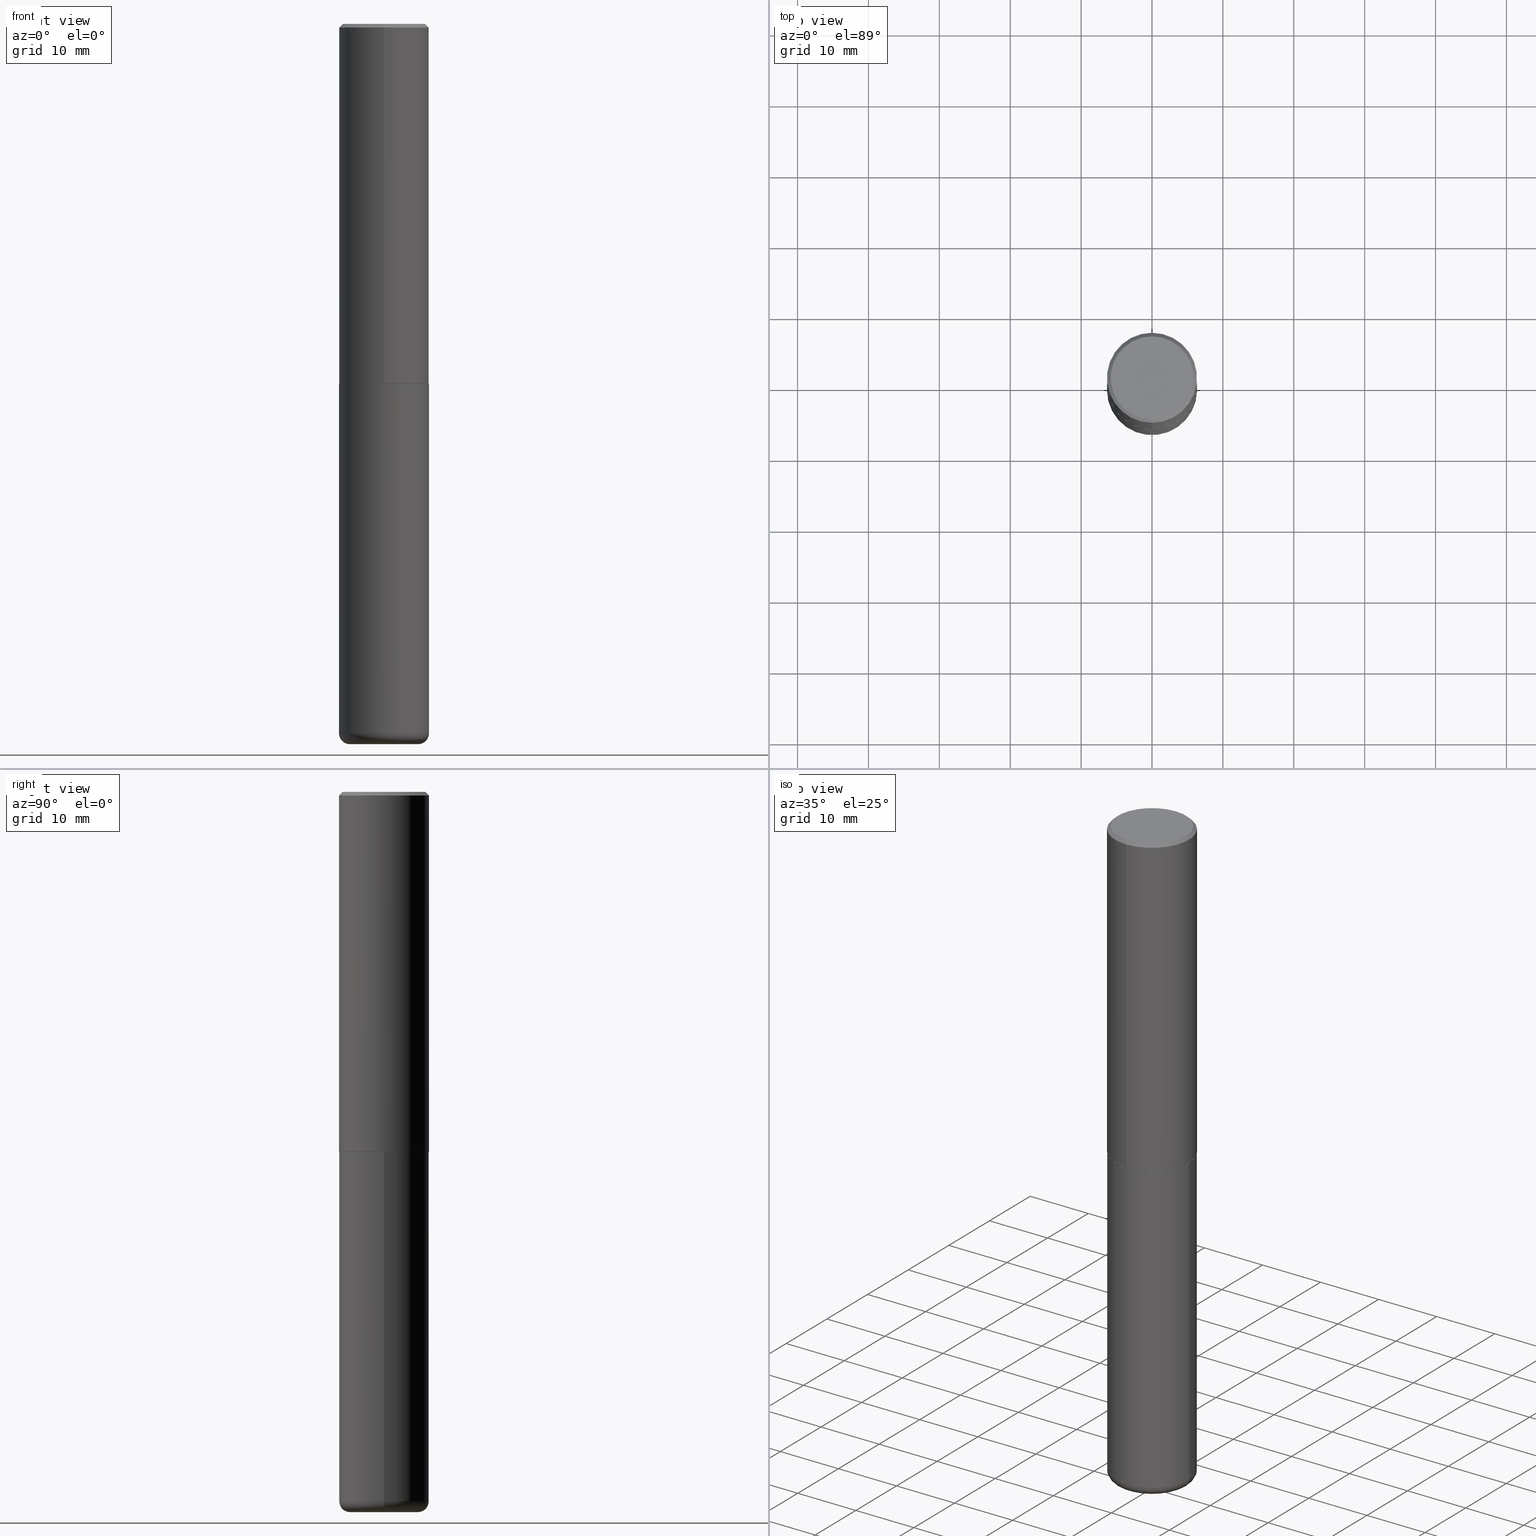
[diagram: canonical four-view strip — front | top / right | iso, engineering-drawing reading convention]
A machine part, canonical four-view strip (front | top / right | iso — engineering-drawing reading convention). The complete STEP part file that produces these views, byte-faithful:
ISO-10303-21;
HEADER;
FILE_DESCRIPTION (( 'STEP AP203' ),
    '1' );
FILE_NAME ('77375.STEP',
    '2024-05-02T19:33:53',
    ( '' ),
    ( '' ),
    'SwSTEP 2.0',
    'SolidWorks 2023',
    '' );
FILE_SCHEMA (( 'CONFIG_CONTROL_DESIGN' ));
ENDSEC;

DATA;
#1 = DIRECTION ( 'NONE',  ( -2.444078991372175563E-29, 3.493471632758652550E-15, 1.000000000000000000 ) ) ;
#2 = CARTESIAN_POINT ( 'NONE',  ( 4.888157982744373443E-31, -6.986943265517335816E-17, -0.02000000000000009062 ) ) ;
#3 = ORIENTED_EDGE ( 'NONE', *, *, #322, .T. ) ;
#4 = CARTESIAN_POINT ( 'NONE',  ( -1.738757706743831360E-15, -0.2490000000000069935, -1.999999999999999112 ) ) ;
#5 = CC_DESIGN_PERSON_AND_ORGANIZATION_ASSIGNMENT ( #210, #338, ( #232 ) ) ;
#6 = DIRECTION ( 'NONE',  ( -6.982962677686265133E-15, -1.000000000000000000, 3.500180241882336472E-15 ) ) ;
#7 = DIRECTION ( 'NONE',  ( -2.445468806185136597E-29, 3.491481338843145583E-15, 1.000000000000000000 ) ) ;
#8 = CC_DESIGN_DATE_AND_TIME_ASSIGNMENT ( #253, #156, ( #101 ) ) ;
#9 = VECTOR ( 'NONE', #142, 39.37007874015748143 ) ;
#10 = DIRECTION ( 'NONE',  ( 6.982962677686265133E-15, 1.000000000000000000, -3.500180241882336472E-15 ) ) ;
#11 = COORDINATED_UNIVERSAL_TIME_OFFSET ( 5, 0, .BEHIND. ) ;
#12 = CARTESIAN_POINT ( 'NONE',  ( 1.769251412042697971E-15, 0.2489999999999930047, -2.000000000000000888 ) ) ;
#13 = ORIENTED_EDGE ( 'NONE', *, *, #392, .T. ) ;
#14 = EDGE_CURVE ( 'NONE', #82, #272, #94, .T. ) ;
#15 = DATE_TIME_ROLE ( 'creation_date' ) ;
#16 =( NAMED_UNIT ( * ) PLANE_ANGLE_UNIT ( ) SI_UNIT ( $, .RADIAN. ) );
#17 = CONICAL_SURFACE ( 'NONE', #135, 0.2500000000000000555, 0.7853981633974466137 ) ;
#18 = ORIENTED_EDGE ( 'NONE', *, *, #270, .F. ) ;
#19 = CARTESIAN_POINT ( 'NONE',  ( 4.888157982744351127E-29, -6.986943265517304311E-15, -2.000000000000000000 ) ) ;
#20 = EDGE_CURVE ( 'NONE', #247, #22, #117, .T. ) ;
#21 = CARTESIAN_POINT ( 'NONE',  ( 0.1899999999999999745, -1.508319938380238721E-14, -3.939999999999999947 ) ) ;
#22 = VERTEX_POINT ( 'NONE', #145 ) ;
#23 = DIRECTION ( 'NONE',  ( 6.982962677686265922E-15, 1.000000000000000000, -3.493471632758652550E-15 ) ) ;
#24 = VECTOR ( 'NONE', #288, 39.37007874015748143 ) ;
#25 = LOCAL_TIME ( 15, 33, 53.00000000000000000, #280 ) ;
#26 = DIRECTION ( 'NONE',  ( 4.937700262164538576E-15, 0.7071067811865437980, -0.7071067811865511255 ) ) ;
#27 = PERSON_AND_ORGANIZATION_ROLE ( 'creator' ) ;
#28 = CARTESIAN_POINT ( 'NONE',  ( 0.1899999999999999745, -1.529268826413297395E-14, -4.000000000000000888 ) ) ;
#29 = CALENDAR_DATE ( 2024, 2, 5 ) ;
#30 = CARTESIAN_POINT ( 'NONE',  ( 9.635147096369438236E-29, -1.375643647504199401E-14, -3.939999999999999947 ) ) ;
#31 = AXIS2_PLACEMENT_3D ( 'NONE', #242, #157, #223 ) ;
#32 = DIRECTION ( 'NONE',  ( -2.445468806185136597E-29, 3.491481338843145583E-15, 1.000000000000000000 ) ) ;
#33 = ADVANCED_FACE ( 'NONE', ( #217 ), #109, .T. ) ;
#34 = PRODUCT ( '77375', '77375', '', ( #271 ) ) ;
#35 = FACE_OUTER_BOUND ( 'NONE', #219, .T. ) ;
#36 = DIRECTION ( 'NONE',  ( 1.000000000000000000, -6.982962677686266711E-15, 4.876176775795935793E-29 ) ) ;
#37 = CC_DESIGN_PERSON_AND_ORGANIZATION_ASSIGNMENT ( #269, #405, ( #34 ) ) ;
#38 = CARTESIAN_POINT ( 'NONE',  ( 0.000000000000000000, 0.000000000000000000, 0.000000000000000000 ) ) ;
#39 = EDGE_LOOP ( 'NONE', ( #317, #182, #169, #68 ) ) ;
#40 = CARTESIAN_POINT ( 'NONE',  ( 4.888157982744373443E-31, -6.986943265517335816E-17, -0.02000000000000009062 ) ) ;
#41 = CARTESIAN_POINT ( 'NONE',  ( 0.2500000000000000000, -1.745740669421566678E-15, 1.219044193948983948E-29 ) ) ;
#42 = PERSON_AND_ORGANIZATION ( #351, #336 ) ;
#43 = AXIS2_PLACEMENT_3D ( 'NONE', #76, #407, #302 ) ;
#44 = EDGE_CURVE ( 'NONE', #400, #82, #57, .T. ) ;
#45 = ORIENTED_EDGE ( 'NONE', *, *, #44, .F. ) ;
#46 = COORDINATED_UNIVERSAL_TIME_OFFSET ( 5, 0, .BEHIND. ) ;
#47 = ORIENTED_EDGE ( 'NONE', *, *, #75, .T. ) ;
#48 = ORIENTED_EDGE ( 'NONE', *, *, #191, .F. ) ;
#49 = EDGE_CURVE ( 'NONE', #90, #404, #268, .T. ) ;
#50 = CONICAL_SURFACE ( 'NONE', #402, 0.2500000000000000555, 0.7853981633974466137 ) ;
#51 = CIRCLE ( 'NONE', #403, 0.1899999999999999745 ) ;
#52 = CC_DESIGN_PERSON_AND_ORGANIZATION_ASSIGNMENT ( #54, #119, ( #209 ) ) ;
#53 = VERTEX_POINT ( 'NONE', #126 ) ;
#54 = PERSON_AND_ORGANIZATION ( #351, #336 ) ;
#55 = CARTESIAN_POINT ( 'NONE',  ( 4.888157982744373443E-31, -6.986943265517335816E-17, -0.02000000000000009062 ) ) ;
#56 = LINE ( 'NONE', #318, #189 ) ;
#57 = CIRCLE ( 'NONE', #111, 0.1899999999999999745 ) ;
#58 = TOROIDAL_SURFACE ( 'NONE', #129, 0.1899999999999999745, 0.06000000000000023370 ) ;
#59 = CARTESIAN_POINT ( 'NONE',  ( 1.776356839400251254E-15, 0.2500000000000001110, -8.733679081896635319E-16 ) ) ;
#60 = DIRECTION ( 'NONE',  ( 2.444078991372175283E-29, -3.493471632758652550E-15, -1.000000000000000000 ) ) ;
#61 = ADVANCED_FACE ( 'NONE', ( #220 ), #95, .F. ) ;
#62 = LINE ( 'NONE', #59, #24 ) ;
#63 = AXIS2_PLACEMENT_3D ( 'NONE', #102, #67, #361 ) ;
#64 = APPROVAL_PERSON_ORGANIZATION ( #42, #84, #108 ) ;
#65 = CYLINDRICAL_SURFACE ( 'NONE', #235, 0.2500000000000000000 ) ;
#66 = EDGE_LOOP ( 'NONE', ( #366, #308, #274, #115 ) ) ;
#67 = DIRECTION ( 'NONE',  ( -2.445468806185136597E-29, 3.491481338843145583E-15, 1.000000000000000000 ) ) ;
#68 = ORIENTED_EDGE ( 'NONE', *, *, #248, .F. ) ;
#69 = CARTESIAN_POINT ( 'NONE',  ( -0.2500000000000000000, 1.776356839400250465E-15, -1.229733772563726445E-29 ) ) ;
#70 = EDGE_LOOP ( 'NONE', ( #13, #342, #18, #339 ) ) ;
#71 = AXIS2_PLACEMENT_3D ( 'NONE', #333, #203, #139 ) ;
#72 = FACE_OUTER_BOUND ( 'NONE', #171, .T. ) ;
#73 = DIRECTION ( 'NONE',  ( 1.000000000000000000, -6.982962677686266711E-15, 4.876176775795935793E-29 ) ) ;
#74 = ORIENTED_EDGE ( 'NONE', *, *, #152, .T. ) ;
#75 = EDGE_CURVE ( 'NONE', #53, #404, #320, .T. ) ;
#76 = CARTESIAN_POINT ( 'NONE',  ( 4.888157982744351127E-29, -6.986943265517304311E-15, -2.000000000000000000 ) ) ;
#77 = ORIENTED_EDGE ( 'NONE', *, *, #292, .F. ) ;
#78 = ORIENTED_EDGE ( 'NONE', *, *, #114, .T. ) ;
#79 = AXIS2_PLACEMENT_3D ( 'NONE', #190, #291, #418 ) ;
#80 = LOCAL_TIME ( 15, 33, 53.00000000000000000, #321 ) ;
#81 = APPROVAL_DATE_TIME ( #367, #84 ) ;
#82 = VERTEX_POINT ( 'NONE', #28 ) ;
#83 = APPROVAL_DATE_TIME ( #370, #307 ) ;
#84 = APPROVAL ( #116, 'UNSPECIFIED' ) ;
#85 = DIRECTION ( 'NONE',  ( -2.444078991372175563E-29, 3.493471632758652550E-15, 1.000000000000000000 ) ) ;
#86 = EDGE_LOOP ( 'NONE', ( #243, #74, #411, #369 ) ) ;
#87 = CARTESIAN_POINT ( 'NONE',  ( 4.888157982744351127E-29, -6.986943265517304311E-15, -2.000000000000000000 ) ) ;
#88 = CIRCLE ( 'NONE', #200, 0.2500000000000000000 ) ;
#89 = DIRECTION ( 'NONE',  ( 5.024295867788576727E-15, 0.7071067811866224018, 0.7071067811864726327 ) ) ;
#90 = VERTEX_POINT ( 'NONE', #192 ) ;
#91 = DIRECTION ( 'NONE',  ( -2.444078991372175563E-29, 3.493471632758652550E-15, 1.000000000000000000 ) ) ;
#92 = DIRECTION ( 'NONE',  ( -6.982962677686265922E-15, -1.000000000000000000, 3.493471632758652550E-15 ) ) ;
#93 = LINE ( 'NONE', #41, #222 ) ;
#94 = CIRCLE ( 'NONE', #175, 0.06000000000000021289 ) ;
#95 = PLANE ( 'NONE',  #208 ) ;
#96 = CYLINDRICAL_SURFACE ( 'NONE', #127, 0.2500000000000001110 ) ;
#97 = CARTESIAN_POINT ( 'NONE',  ( -0.2500000000000001110, -1.198007963564174355E-14, -3.939999999999999947 ) ) ;
#98 = CIRCLE ( 'NONE', #353, 0.2500000000000000555 ) ;
#99 = AXIS2_PLACEMENT_3D ( 'NONE', #327, #174, #328 ) ;
#100 = DIMENSIONAL_EXPONENTS ( 1.000000000000000000, 0.000000000000000000, 0.000000000000000000, 0.000000000000000000, 0.000000000000000000, 0.000000000000000000, 0.000000000000000000 ) ;
#101 = SECURITY_CLASSIFICATION ( '', '', #125 ) ;
#102 = CARTESIAN_POINT ( 'NONE',  ( 4.890937612370273194E-29, -6.982962677686291165E-15, -2.000000000000000000 ) ) ;
#103 = DIRECTION ( 'NONE',  ( 1.000000000000000000, -6.982962677686265133E-15, 4.883557194083111780E-29 ) ) ;
#104 = DIRECTION ( 'NONE',  ( -6.982962677686265922E-15, -1.000000000000000000, 3.278217592397112312E-15 ) ) ;
#105 = EDGE_LOOP ( 'NONE', ( #393, #3, #197, #120 ) ) ;
#106 = ADVANCED_FACE ( 'NONE', ( #160 ), #96, .T. ) ;
#107 = DESIGN_CONTEXT ( 'detailed design', #183, 'design' ) ;
#108 = APPROVAL_ROLE ( '' ) ;
#109 = CYLINDRICAL_SURFACE ( 'NONE', #31, 0.2500000000000001110 ) ;
#110 = VERTEX_POINT ( 'NONE', #132 ) ;
#111 = AXIS2_PLACEMENT_3D ( 'NONE', #416, #122, #413 ) ;
#112 = APPROVAL_PERSON_ORGANIZATION ( #147, #307, #401 ) ;
#113 = COORDINATED_UNIVERSAL_TIME_OFFSET ( 5, 0, .BEHIND. ) ;
#114 = EDGE_CURVE ( 'NONE', #372, #297, #162, .T. ) ;
#115 = ORIENTED_EDGE ( 'NONE', *, *, #202, .F. ) ;
#116 = APPROVAL_STATUS ( 'not_yet_approved' ) ;
#117 = LINE ( 'NONE', #12, #309 ) ;
#118 = EDGE_LOOP ( 'NONE', ( #212, #206 ) ) ;
#119 = PERSON_AND_ORGANIZATION_ROLE ( 'design_supplier' ) ;
#120 = ORIENTED_EDGE ( 'NONE', *, *, #49, .F. ) ;
#121 = EDGE_CURVE ( 'NONE', #22, #90, #62, .T. ) ;
#122 = DIRECTION ( 'NONE',  ( -2.445468806185136597E-29, 3.491481338843145583E-15, 1.000000000000000000 ) ) ;
#123 = PERSON_AND_ORGANIZATION ( #351, #336 ) ;
#124 = DIRECTION ( 'NONE',  ( -2.445468806185136597E-29, 3.491481338843145583E-15, 1.000000000000000000 ) ) ;
#125 = SECURITY_CLASSIFICATION_LEVEL ( 'unclassified' ) ;
#126 = CARTESIAN_POINT ( 'NONE',  ( -1.646519519465166376E-15, -0.2299999999999997047, 1.115557654912385711E-15 ) ) ;
#127 = AXIS2_PLACEMENT_3D ( 'NONE', #225, #382, #260 ) ;
#128 = ADVANCED_FACE ( 'NONE', ( #224 ), #148, .T. ) ;
#129 = AXIS2_PLACEMENT_3D ( 'NONE', #136, #390, #103 ) ;
#130 = CC_DESIGN_PERSON_AND_ORGANIZATION_ASSIGNMENT ( #344, #27, ( #209 ) ) ;
#131 = CARTESIAN_POINT ( 'NONE',  ( 4.888157982744351127E-29, -6.986943265517304311E-15, -2.000000000000000000 ) ) ;
#132 = CARTESIAN_POINT ( 'NONE',  ( 1.675911042644703182E-15, 0.2299999999999997047, -4.914392961565924424E-16 ) ) ;
#133 = DIRECTION ( 'NONE',  ( -2.445468806185136877E-29, 3.491481338843145188E-15, 1.000000000000000000 ) ) ;
#134 = PRODUCT_DEFINITION_SHAPE ( 'NONE', 'NONE',  #232 ) ;
#135 = AXIS2_PLACEMENT_3D ( 'NONE', #231, #364, #298 ) ;
#136 = CARTESIAN_POINT ( 'NONE',  ( 9.635147096369438236E-29, -1.375643647504199401E-14, -3.939999999999999947 ) ) ;
#137 = ORIENTED_EDGE ( 'NONE', *, *, #388, .T. ) ;
#138 = DIRECTION ( 'NONE',  ( -2.444078991372175563E-29, 3.493471632758652550E-15, 1.000000000000000000 ) ) ;
#139 = DIRECTION ( 'NONE',  ( -1.000000000000000000, 6.982962677686265922E-15, -4.876176775795935793E-29 ) ) ;
#140 = EDGE_CURVE ( 'NONE', #250, #281, #88, .T. ) ;
#141 = AXIS2_PLACEMENT_3D ( 'NONE', #326, #164, #256 ) ;
#142 = DIRECTION ( 'NONE',  ( -2.444078991372175563E-29, 3.493471632758652550E-15, 1.000000000000000000 ) ) ;
#143 = ADVANCED_BREP_SHAPE_REPRESENTATION ( '77375', ( #381, #238, #354 ), #258 ) ;
#144 = DIRECTION ( 'NONE',  ( -2.445468806185136597E-29, 3.491481338843145583E-15, 1.000000000000000000 ) ) ;
#145 = CARTESIAN_POINT ( 'NONE',  ( 1.776356839400276103E-15, 0.2499999999999932832, -1.999000000000000776 ) ) ;
#146 = ORIENTED_EDGE ( 'NONE', *, *, #140, .F. ) ;
#147 = PERSON_AND_ORGANIZATION ( #351, #336 ) ;
#148 = CONICAL_SURFACE ( 'NONE', #300, 0.2489999999999999991, 0.7853981633975507526 ) ;
#149 = CARTESIAN_POINT ( 'NONE',  ( 9.781875224740547508E-29, -1.396592535537258391E-14, -4.000000000000000888 ) ) ;
#150 = ORIENTED_EDGE ( 'NONE', *, *, #140, .T. ) ;
#151 = ORIENTED_EDGE ( 'NONE', *, *, #410, .F. ) ;
#152 = EDGE_CURVE ( 'NONE', #400, #207, #282, .T. ) ;
#153 = PERSON_AND_ORGANIZATION_ROLE ( 'classification_officer' ) ;
#154 = CIRCLE ( 'NONE', #43, 0.2489999999999999991 ) ;
#155 = DIRECTION ( 'NONE',  ( 7.105427357601001859E-15, 1.000000000000000000, -3.491481338843145583E-15 ) ) ;
#156 = DATE_TIME_ROLE ( 'classification_date' ) ;
#157 = DIRECTION ( 'NONE',  ( -2.444078991372175563E-29, 3.493471632758652550E-15, 1.000000000000000000 ) ) ;
#158 = CALENDAR_DATE ( 2024, 2, 5 ) ;
#159 = ADVANCED_FACE ( 'NONE', ( #323 ), #346, .F. ) ;
#160 = FACE_OUTER_BOUND ( 'NONE', #105, .T. ) ;
#161 = SHAPE_DEFINITION_REPRESENTATION ( #134, #143 ) ;
#162 = LINE ( 'NONE', #377, #368 ) ;
#163 = CIRCLE ( 'NONE', #360, 0.2500000000000000000 ) ;
#164 = DIRECTION ( 'NONE',  ( 2.438088387897960049E-29, -3.491481338843145188E-15, -1.000000000000000000 ) ) ;
#165 = CARTESIAN_POINT ( 'NONE',  ( 9.635147096369438236E-29, -1.375643647504199401E-14, -3.939999999999999947 ) ) ;
#166 = EDGE_CURVE ( 'NONE', #272, #207, #163, .T. ) ;
#167 = FACE_OUTER_BOUND ( 'NONE', #66, .T. ) ;
#168 = CIRCLE ( 'NONE', #257, 0.2500000000000000000 ) ;
#169 = ORIENTED_EDGE ( 'NONE', *, *, #277, .F. ) ;
#170 = DIRECTION ( 'NONE',  ( -2.445468806185136877E-29, 3.491481338843145188E-15, 1.000000000000000000 ) ) ;
#171 = EDGE_LOOP ( 'NONE', ( #151, #45 ) ) ;
#172 = EDGE_CURVE ( 'NONE', #53, #110, #229, .T. ) ;
#173 = CARTESIAN_POINT ( 'NONE',  ( 4.885713903752978284E-29, -6.983449793884546288E-15, -1.998999999999999888 ) ) ;
#174 = DIRECTION ( 'NONE',  ( -2.445468806185136597E-29, 3.491481338843145583E-15, 1.000000000000000000 ) ) ;
#175 = AXIS2_PLACEMENT_3D ( 'NONE', #21, #177, #408 ) ;
#176 = CC_DESIGN_APPROVAL ( #84, ( #232 ) ) ;
#177 = DIRECTION ( 'NONE',  ( -6.982962677686266711E-15, -1.000000000000000000, 3.491481338843145583E-15 ) ) ;
#178 = ORIENTED_EDGE ( 'NONE', *, *, #75, .F. ) ;
#179 = CALENDAR_DATE ( 2024, 2, 5 ) ;
#180 = EDGE_LOOP ( 'NONE', ( #278, #150 ) ) ;
#181 = LENGTH_MEASURE_WITH_UNIT ( LENGTH_MEASURE( 0.02539999999999999897 ), #246 );
#182 = ORIENTED_EDGE ( 'NONE', *, *, #121, .T. ) ;
#183 = APPLICATION_CONTEXT ( 'configuration controlled 3d designs of mechanical parts and assemblies' ) ;
#184 = CC_DESIGN_APPROVAL ( #307, ( #209 ) ) ;
#185 =( NAMED_UNIT ( * ) SI_UNIT ( $, .STERADIAN. ) SOLID_ANGLE_UNIT ( ) );
#186 = ADVANCED_FACE ( 'NONE', ( #261 ), #384, .F. ) ;
#187 = EDGE_LOOP ( 'NONE', ( #303, #204, #374, #77 ) ) ;
#188 = DIRECTION ( 'NONE',  ( -6.982962677686265133E-15, -1.000000000000000000, 3.500180241882336472E-15 ) ) ;
#189 = VECTOR ( 'NONE', #26, 39.37007874015748854 ) ;
#190 = CARTESIAN_POINT ( 'NONE',  ( -7.626972843823584403E-45, 1.090169890898625670E-30, 3.120591793778966343E-16 ) ) ;
#191 = EDGE_CURVE ( 'NONE', #110, #90, #56, .T. ) ;
#192 = CARTESIAN_POINT ( 'NONE',  ( 1.745740669421567269E-15, 0.2499999999999999722, -0.02000000000000096492 ) ) ;
#193 = DIRECTION ( 'NONE',  ( 1.000000000000000000, -6.982962677686266711E-15, 0.000000000000000000 ) ) ;
#194 = DIRECTION ( 'NONE',  ( -2.444078991372175283E-29, 3.493471632758652550E-15, 1.000000000000000000 ) ) ;
#195 = CARTESIAN_POINT ( 'NONE',  ( 1.772804125721499462E-15, 0.2489999999999930047, -2.000000000000000888 ) ) ;
#196 = EDGE_CURVE ( 'NONE', #110, #53, #375, .T. ) ;
#197 = ORIENTED_EDGE ( 'NONE', *, *, #248, .T. ) ;
#198 = PLANE ( 'NONE',  #71 ) ;
#199 = FACE_OUTER_BOUND ( 'NONE', #245, .T. ) ;
#200 = AXIS2_PLACEMENT_3D ( 'NONE', #415, #124, #193 ) ;
#201 = ORIENTED_EDGE ( 'NONE', *, *, #191, .T. ) ;
#202 = EDGE_CURVE ( 'NONE', #272, #281, #93, .T. ) ;
#203 = DIRECTION ( 'NONE',  ( 2.438088387897960049E-29, -3.491481338843145188E-15, -1.000000000000000000 ) ) ;
#204 = ORIENTED_EDGE ( 'NONE', *, *, #44, .T. ) ;
#205 = CYLINDRICAL_SURFACE ( 'NONE', #347, 0.2500000000000000000 ) ;
#206 = ORIENTED_EDGE ( 'NONE', *, *, #172, .T. ) ;
#207 = VERTEX_POINT ( 'NONE', #97 ) ;
#208 = AXIS2_PLACEMENT_3D ( 'NONE', #255, #194, #92 ) ;
#209 = PRODUCT_DEFINITION_FORMATION_WITH_SPECIFIED_SOURCE ( 'ANY', '', #34, .NOT_KNOWN. ) ;
#210 = PERSON_AND_ORGANIZATION ( #351, #336 ) ;
#211 = EDGE_CURVE ( 'NONE', #207, #250, #389, .T. ) ;
#212 = ORIENTED_EDGE ( 'NONE', *, *, #196, .T. ) ;
#213 = ORIENTED_EDGE ( 'NONE', *, *, #392, .F. ) ;
#214 = CLOSED_SHELL ( 'NONE', ( #128, #33, #240, #226, #106, #379, #61, #159 ) ) ;
#215 = ADVANCED_FACE ( 'NONE', ( #199 ), #205, .T. ) ;
#216 = CARTESIAN_POINT ( 'NONE',  ( 0.000000000000000000, 0.000000000000000000, 0.000000000000000000 ) ) ;
#217 = FACE_OUTER_BOUND ( 'NONE', #39, .T. ) ;
#218 = APPLICATION_CONTEXT ( 'configuration controlled 3d designs of mechanical parts and assemblies' ) ;
#219 = EDGE_LOOP ( 'NONE', ( #337, #47, #239, #48 ) ) ;
#220 = FACE_OUTER_BOUND ( 'NONE', #295, .T. ) ;
#221 = DIRECTION ( 'NONE',  ( 1.000000000000000000, -6.982962677686270655E-15, 0.000000000000000000 ) ) ;
#222 = VECTOR ( 'NONE', #133, 39.37007874015748143 ) ;
#223 = DIRECTION ( 'NONE',  ( -6.982962677686266711E-15, -1.000000000000000000, 3.493471632758652550E-15 ) ) ;
#224 = FACE_OUTER_BOUND ( 'NONE', #70, .T. ) ;
#225 = CARTESIAN_POINT ( 'NONE',  ( 0.000000000000000000, 0.000000000000000000, 0.000000000000000000 ) ) ;
#226 = ADVANCED_FACE ( 'NONE', ( #391 ), #50, .T. ) ;
#227 = TOROIDAL_SURFACE ( 'NONE', #99, 0.1899999999999999745, 0.06000000000000023370 ) ;
#228 = DIRECTION ( 'NONE',  ( -2.445468806185136597E-29, 3.491481338843145583E-15, 1.000000000000000000 ) ) ;
#229 = CIRCLE ( 'NONE', #79, 0.2299999999999997047 ) ;
#230 = LINE ( 'NONE', #296, #9 ) ;
#231 = CARTESIAN_POINT ( 'NONE',  ( 4.888157982744373443E-31, -6.986943265517335816E-17, -0.02000000000000009062 ) ) ;
#232 = PRODUCT_DEFINITION ( 'UNKNOWN', '', #209, #107 ) ;
#233 = CARTESIAN_POINT ( 'NONE',  ( -1.745740669421519543E-15, -0.2500000000000072720, -1.998999999999999000 ) ) ;
#234 = AXIS2_PLACEMENT_3D ( 'NONE', #286, #1, #378 ) ;
#235 = AXIS2_PLACEMENT_3D ( 'NONE', #236, #299, #36 ) ;
#236 = CARTESIAN_POINT ( 'NONE',  ( 0.000000000000000000, 0.000000000000000000, 0.000000000000000000 ) ) ;
#237 = ORIENTED_EDGE ( 'NONE', *, *, #211, .F. ) ;
#238 = MANIFOLD_SOLID_BREP ( 'Body-Move/Copy2[2]', #214 ) ;
#239 = ORIENTED_EDGE ( 'NONE', *, *, #277, .T. ) ;
#240 = ADVANCED_FACE ( 'NONE', ( #35 ), #17, .T. ) ;
#241 = CARTESIAN_POINT ( 'NONE',  ( -0.1899999999999999745, -1.229798689653506874E-14, -4.000000000000000888 ) ) ;
#242 = CARTESIAN_POINT ( 'NONE',  ( 0.000000000000000000, 0.000000000000000000, 0.000000000000000000 ) ) ;
#243 = ORIENTED_EDGE ( 'NONE', *, *, #410, .T. ) ;
#244 = CALENDAR_DATE ( 2024, 2, 5 ) ;
#245 = EDGE_LOOP ( 'NONE', ( #237, #312, #358, #146 ) ) ;
#246 =( LENGTH_UNIT ( ) NAMED_UNIT ( * ) SI_UNIT ( $, .METRE. ) );
#247 = VERTEX_POINT ( 'NONE', #195 ) ;
#248 = EDGE_CURVE ( 'NONE', #297, #404, #230, .T. ) ;
#249 = DIRECTION ( 'NONE',  ( 1.000000000000000000, 0.000000000000000000, 0.000000000000000000 ) ) ;
#250 = VERTEX_POINT ( 'NONE', #263 ) ;
#251 = AXIS2_PLACEMENT_3D ( 'NONE', #173, #138, #104 ) ;
#252 = AXIS2_PLACEMENT_3D ( 'NONE', #19, #85, #279 ) ;
#253 = DATE_AND_TIME ( #158, #25 ) ;
#254 = APPROVAL_STATUS ( 'not_yet_approved' ) ;
#255 = CARTESIAN_POINT ( 'NONE',  ( 4.888157982744351127E-29, -6.986943265517304311E-15, -2.000000000000000000 ) ) ;
#256 = DIRECTION ( 'NONE',  ( -1.000000000000000000, 6.982962677686265922E-15, -4.876176775795935793E-29 ) ) ;
#257 = AXIS2_PLACEMENT_3D ( 'NONE', #165, #228, #266 ) ;
#258 =( GEOMETRIC_REPRESENTATION_CONTEXT ( 3 ) GLOBAL_UNCERTAINTY_ASSIGNED_CONTEXT ( ( #395 ) ) GLOBAL_UNIT_ASSIGNED_CONTEXT ( ( #341, #16, #185 ) ) REPRESENTATION_CONTEXT ( 'NONE', 'WORKASPACE' ) );
#259 = DIRECTION ( 'NONE',  ( -2.444078991372175563E-29, 3.493471632758652550E-15, 1.000000000000000000 ) ) ;
#260 = DIRECTION ( 'NONE',  ( -6.982962677686266711E-15, -1.000000000000000000, 3.493471632758652550E-15 ) ) ;
#261 = FACE_OUTER_BOUND ( 'NONE', #180, .T. ) ;
#262 = AXIS2_PLACEMENT_3D ( 'NONE', #352, #155, #350 ) ;
#263 = CARTESIAN_POINT ( 'NONE',  ( -0.2500000000000000000, -8.593342736963892519E-15, -2.000000000000000000 ) ) ;
#264 = APPROVAL_PERSON_ORGANIZATION ( #123, #373, #287 ) ;
#265 = DIRECTION ( 'NONE',  ( -2.444078991372175563E-29, 3.493471632758652550E-15, 1.000000000000000000 ) ) ;
#266 = DIRECTION ( 'NONE',  ( 1.000000000000000000, -6.982962677686270655E-15, 0.000000000000000000 ) ) ;
#267 = CARTESIAN_POINT ( 'NONE',  ( 4.885713903752978284E-29, -6.983449793884546288E-15, -1.998999999999999888 ) ) ;
#268 = CIRCLE ( 'NONE', #386, 0.2500000000000000555 ) ;
#269 = PERSON_AND_ORGANIZATION ( #351, #336 ) ;
#270 = EDGE_CURVE ( 'NONE', #297, #22, #335, .T. ) ;
#271 = MECHANICAL_CONTEXT ( 'NONE', #218, 'mechanical' ) ;
#272 = VERTEX_POINT ( 'NONE', #385 ) ;
#273 = APPROVAL_STATUS ( 'not_yet_approved' ) ;
#274 = ORIENTED_EDGE ( 'NONE', *, *, #305, .F. ) ;
#275 = CIRCLE ( 'NONE', #329, 0.2500000000000002776 ) ;
#276 = DIRECTION ( 'NONE',  ( 0.000000000000000000, 0.000000000000000000, 1.000000000000000000 ) ) ;
#277 = EDGE_CURVE ( 'NONE', #404, #90, #98, .T. ) ;
#278 = ORIENTED_EDGE ( 'NONE', *, *, #305, .T. ) ;
#279 = DIRECTION ( 'NONE',  ( -6.982962677686265133E-15, -1.000000000000000000, 3.291383124896702687E-15 ) ) ;
#280 = COORDINATED_UNIVERSAL_TIME_OFFSET ( 5, 0, .BEHIND. ) ;
#281 = VERTEX_POINT ( 'NONE', #356 ) ;
#282 = CIRCLE ( 'NONE', #262, 0.06000000000000021289 ) ;
#283 = LOCAL_TIME ( 15, 33, 53.00000000000000000, #11 ) ;
#284 = APPROVAL_DATE_TIME ( #376, #373 ) ;
#285 = CARTESIAN_POINT ( 'NONE',  ( -1.715124499442882496E-15, -0.2500000000000001110, -0.01999999999999921632 ) ) ;
#286 = CARTESIAN_POINT ( 'NONE',  ( -7.626972843823584403E-45, 1.090169890898625670E-30, 3.120591793778966343E-16 ) ) ;
#287 = APPROVAL_ROLE ( '' ) ;
#288 = DIRECTION ( 'NONE',  ( -2.444078991372175563E-29, 3.493471632758652550E-15, 1.000000000000000000 ) ) ;
#289 = CIRCLE ( 'NONE', #63, 0.2500000000000000000 ) ;
#290 = CIRCLE ( 'NONE', #252, 0.2489999999999999991 ) ;
#291 = DIRECTION ( 'NONE',  ( -2.444078991372175563E-29, 3.493471632758652550E-15, 1.000000000000000000 ) ) ;
#292 = EDGE_CURVE ( 'NONE', #207, #272, #168, .T. ) ;
#293 = DIRECTION ( 'NONE',  ( -6.982962677686265133E-15, -1.000000000000000000, 3.291383124896702687E-15 ) ) ;
#294 = DIRECTION ( 'NONE',  ( 2.444078991372175563E-29, -3.493471632758652550E-15, -1.000000000000000000 ) ) ;
#295 = EDGE_LOOP ( 'NONE', ( #213, #365 ) ) ;
#296 = CARTESIAN_POINT ( 'NONE',  ( -1.745740669421567467E-15, -0.2500000000000001110, 8.733679081896635319E-16 ) ) ;
#297 = VERTEX_POINT ( 'NONE', #233 ) ;
#298 = DIRECTION ( 'NONE',  ( 6.982962677686265133E-15, 1.000000000000000000, -3.500180241882336472E-15 ) ) ;
#299 = DIRECTION ( 'NONE',  ( -2.445468806185136597E-29, 3.491481338843145583E-15, 1.000000000000000000 ) ) ;
#300 = AXIS2_PLACEMENT_3D ( 'NONE', #131, #91, #293 ) ;
#301 = AXIS2_PLACEMENT_3D ( 'NONE', #87, #340, #310 ) ;
#302 = DIRECTION ( 'NONE',  ( -6.982962677686265133E-15, -1.000000000000000000, 3.291383124896702687E-15 ) ) ;
#303 = ORIENTED_EDGE ( 'NONE', *, *, #152, .F. ) ;
#304 = DATE_AND_TIME ( #179, #412 ) ;
#305 = EDGE_CURVE ( 'NONE', #281, #250, #289, .T. ) ;
#306 = CARTESIAN_POINT ( 'NONE',  ( -1.715124499442882496E-15, -0.2500000000000001110, -0.01999999999999921632 ) ) ;
#307 = APPROVAL ( #273, 'UNSPECIFIED' ) ;
#308 = ORIENTED_EDGE ( 'NONE', *, *, #211, .T. ) ;
#309 = VECTOR ( 'NONE', #89, 39.37007874015748143 ) ;
#310 = DIRECTION ( 'NONE',  ( -6.982962677686265133E-15, -1.000000000000000000, 3.291383124896702687E-15 ) ) ;
#311 = APPLICATION_PROTOCOL_DEFINITION ( 'international standard', 'config_control_design', 1994, #218 ) ;
#312 = ORIENTED_EDGE ( 'NONE', *, *, #292, .T. ) ;
#313 = CARTESIAN_POINT ( 'NONE',  ( 1.606081415867839095E-15, 0.2299999999999997047, -6.474688858455407103E-16 ) ) ;
#314 = ADVANCED_FACE ( 'NONE', ( #72 ), #198, .T. ) ;
#315 = AXIS2_PLACEMENT_3D ( 'NONE', #313, #60, #23 ) ;
#316 = CC_DESIGN_APPROVAL ( #373, ( #101 ) ) ;
#317 = ORIENTED_EDGE ( 'NONE', *, *, #270, .T. ) ;
#318 = CARTESIAN_POINT ( 'NONE',  ( 1.745740669421567269E-15, 0.2499999999999999722, -0.02000000000000096492 ) ) ;
#319 = ORIENTED_EDGE ( 'NONE', *, *, #20, .F. ) ;
#320 = LINE ( 'NONE', #285, #394 ) ;
#321 = COORDINATED_UNIVERSAL_TIME_OFFSET ( 5, 0, .BEHIND. ) ;
#322 = EDGE_CURVE ( 'NONE', #22, #297, #275, .T. ) ;
#323 = FACE_OUTER_BOUND ( 'NONE', #118, .T. ) ;
#324 = CLOSED_SHELL ( 'NONE', ( #349, #357, #186, #215, #332, #314 ) ) ;
#325 = LOCAL_TIME ( 15, 33, 53.00000000000000000, #113 ) ;
#326 = CARTESIAN_POINT ( 'NONE',  ( 4.890937612370273194E-29, -6.982962677686291165E-15, -2.000000000000000000 ) ) ;
#327 = CARTESIAN_POINT ( 'NONE',  ( 9.635147096369438236E-29, -1.375643647504199401E-14, -3.939999999999999947 ) ) ;
#328 = DIRECTION ( 'NONE',  ( 1.000000000000000000, -6.982962677686265133E-15, 4.883557194083111780E-29 ) ) ;
#329 = AXIS2_PLACEMENT_3D ( 'NONE', #267, #265, #396 ) ;
#330 = DIRECTION ( 'NONE',  ( -2.444078991372175563E-29, 3.493471632758652550E-15, 1.000000000000000000 ) ) ;
#331 = FACE_OUTER_BOUND ( 'NONE', #187, .T. ) ;
#332 = ADVANCED_FACE ( 'NONE', ( #331 ), #227, .T. ) ;
#333 = CARTESIAN_POINT ( 'NONE',  ( 1.749709927532266759E-29, -2.546844322343264338E-14, -4.000000000000000000 ) ) ;
#334 = EDGE_LOOP ( 'NONE', ( #319, #137, #78, #343 ) ) ;
#335 = CIRCLE ( 'NONE', #251, 0.2500000000000002776 ) ;
#336 = ORGANIZATION ( 'UNSPECIFIED', 'UNSPECIFIED', '' ) ;
#337 = ORIENTED_EDGE ( 'NONE', *, *, #172, .F. ) ;
#338 = PERSON_AND_ORGANIZATION_ROLE ( 'creator' ) ;
#339 = ORIENTED_EDGE ( 'NONE', *, *, #114, .F. ) ;
#340 = DIRECTION ( 'NONE',  ( -2.444078991372175563E-29, 3.493471632758652550E-15, 1.000000000000000000 ) ) ;
#341 =( CONVERSION_BASED_UNIT ( 'INCH', #181 ) LENGTH_UNIT ( ) NAMED_UNIT ( #100 ) );
#342 = ORIENTED_EDGE ( 'NONE', *, *, #20, .T. ) ;
#343 = ORIENTED_EDGE ( 'NONE', *, *, #322, .F. ) ;
#344 = PERSON_AND_ORGANIZATION ( #351, #336 ) ;
#345 = DIRECTION ( 'NONE',  ( -4.937700262165053702E-15, -0.7071067811866175168, 0.7071067811864775177 ) ) ;
#346 = PLANE ( 'NONE',  #315 ) ;
#347 = AXIS2_PLACEMENT_3D ( 'NONE', #38, #7, #73 ) ;
#348 = DIRECTION ( 'NONE',  ( -4.851104656540954809E-15, -0.7071067811865486830, -0.7071067811865462405 ) ) ;
#349 = ADVANCED_FACE ( 'NONE', ( #167 ), #65, .T. ) ;
#350 = DIRECTION ( 'NONE',  ( -1.000000000000000000, 7.105427357600997914E-15, 0.000000000000000000 ) ) ;
#351 = PERSON ( 'UNSPECIFIED', 'UNSPECIFIED', 'UNSPECIFIED', ('UNSPECIFIED'), ('UNSPECIFIED'), ('UNSPECIFIED') ) ;
#352 = CARTESIAN_POINT ( 'NONE',  ( -0.1899999999999999745, -1.240640527709780404E-14, -3.939999999999999947 ) ) ;
#353 = AXIS2_PLACEMENT_3D ( 'NONE', #40, #330, #6 ) ;
#354 = AXIS2_PLACEMENT_3D ( 'NONE', #216, #276, #249 ) ;
#355 = FACE_OUTER_BOUND ( 'NONE', #86, .T. ) ;
#356 = CARTESIAN_POINT ( 'NONE',  ( 0.2500000000000000000, -8.728703347107857054E-15, -2.000000000000000000 ) ) ;
#357 = ADVANCED_FACE ( 'NONE', ( #355 ), #58, .T. ) ;
#358 = ORIENTED_EDGE ( 'NONE', *, *, #202, .T. ) ;
#359 = FACE_OUTER_BOUND ( 'NONE', #334, .T. ) ;
#360 = AXIS2_PLACEMENT_3D ( 'NONE', #30, #32, #221 ) ;
#361 = DIRECTION ( 'NONE',  ( 1.000000000000000000, -6.982962677686266711E-15, 0.000000000000000000 ) ) ;
#362 = PRODUCT_RELATED_PRODUCT_CATEGORY ( 'detail', '', ( #34 ) ) ;
#363 = CC_DESIGN_DATE_AND_TIME_ASSIGNMENT ( #304, #15, ( #232 ) ) ;
#364 = DIRECTION ( 'NONE',  ( 2.444078991372175563E-29, -3.493471632758652550E-15, -1.000000000000000000 ) ) ;
#365 = ORIENTED_EDGE ( 'NONE', *, *, #388, .F. ) ;
#366 = ORIENTED_EDGE ( 'NONE', *, *, #166, .T. ) ;
#367 = DATE_AND_TIME ( #399, #283 ) ;
#368 = VECTOR ( 'NONE', #345, 39.37007874015748143 ) ;
#369 = ORIENTED_EDGE ( 'NONE', *, *, #14, .F. ) ;
#370 = DATE_AND_TIME ( #244, #325 ) ;
#371 = DIRECTION ( 'NONE',  ( 1.000000000000000000, -6.982962677686261977E-15, 0.000000000000000000 ) ) ;
#372 = VERTEX_POINT ( 'NONE', #4 ) ;
#373 = APPROVAL ( #254, 'UNSPECIFIED' ) ;
#374 = ORIENTED_EDGE ( 'NONE', *, *, #14, .T. ) ;
#375 = CIRCLE ( 'NONE', #234, 0.2299999999999997047 ) ;
#376 = DATE_AND_TIME ( #29, #80 ) ;
#377 = CARTESIAN_POINT ( 'NONE',  ( -1.738757706743831360E-15, -0.2490000000000069935, -1.999999999999999112 ) ) ;
#378 = DIRECTION ( 'NONE',  ( -6.982962677686265922E-15, -1.000000000000000000, 3.493471632758652550E-15 ) ) ;
#379 = ADVANCED_FACE ( 'NONE', ( #359 ), #387, .T. ) ;
#380 = VECTOR ( 'NONE', #170, 39.37007874015748143 ) ;
#381 = MANIFOLD_SOLID_BREP ( 'Body-Move/Copy2[1]', #324 ) ;
#382 = DIRECTION ( 'NONE',  ( -2.444078991372175563E-29, 3.493471632758652550E-15, 1.000000000000000000 ) ) ;
#383 = CC_DESIGN_PERSON_AND_ORGANIZATION_ASSIGNMENT ( #414, #153, ( #101 ) ) ;
#384 = PLANE ( 'NONE',  #141 ) ;
#385 = CARTESIAN_POINT ( 'NONE',  ( 0.2500000000000001110, -1.550217714446356385E-14, -3.939999999999999947 ) ) ;
#386 = AXIS2_PLACEMENT_3D ( 'NONE', #55, #259, #188 ) ;
#387 = CONICAL_SURFACE ( 'NONE', #301, 0.2489999999999999991, 0.7853981633975507526 ) ;
#388 = EDGE_CURVE ( 'NONE', #247, #372, #290, .T. ) ;
#389 = LINE ( 'NONE', #69, #380 ) ;
#390 = DIRECTION ( 'NONE',  ( -2.445468806185136597E-29, 3.491481338843145583E-15, 1.000000000000000000 ) ) ;
#391 = FACE_OUTER_BOUND ( 'NONE', #397, .T. ) ;
#392 = EDGE_CURVE ( 'NONE', #372, #247, #154, .T. ) ;
#393 = ORIENTED_EDGE ( 'NONE', *, *, #121, .F. ) ;
#394 = VECTOR ( 'NONE', #348, 39.37007874015748854 ) ;
#395 = UNCERTAINTY_MEASURE_WITH_UNIT (LENGTH_MEASURE( 1.000000000000000082E-05 ), #341, 'distance_accuracy_value', 'NONE');
#396 = DIRECTION ( 'NONE',  ( -6.982962677686265922E-15, -1.000000000000000000, 3.278217592397112312E-15 ) ) ;
#397 = EDGE_LOOP ( 'NONE', ( #178, #406, #201, #409 ) ) ;
#398 = APPLICATION_PROTOCOL_DEFINITION ( 'international standard', 'config_control_design', 1994, #183 ) ;
#399 = CALENDAR_DATE ( 2024, 2, 5 ) ;
#400 = VERTEX_POINT ( 'NONE', #241 ) ;
#401 = APPROVAL_ROLE ( '' ) ;
#402 = AXIS2_PLACEMENT_3D ( 'NONE', #2, #294, #10 ) ;
#403 = AXIS2_PLACEMENT_3D ( 'NONE', #149, #144, #371 ) ;
#404 = VERTEX_POINT ( 'NONE', #306 ) ;
#405 = PERSON_AND_ORGANIZATION_ROLE ( 'design_owner' ) ;
#406 = ORIENTED_EDGE ( 'NONE', *, *, #196, .F. ) ;
#407 = DIRECTION ( 'NONE',  ( -2.444078991372175563E-29, 3.493471632758652550E-15, 1.000000000000000000 ) ) ;
#408 = DIRECTION ( 'NONE',  ( 1.000000000000000000, -6.982962677686275388E-15, 0.000000000000000000 ) ) ;
#409 = ORIENTED_EDGE ( 'NONE', *, *, #49, .T. ) ;
#410 = EDGE_CURVE ( 'NONE', #82, #400, #51, .T. ) ;
#411 = ORIENTED_EDGE ( 'NONE', *, *, #166, .F. ) ;
#412 = LOCAL_TIME ( 15, 33, 53.00000000000000000, #46 ) ;
#413 = DIRECTION ( 'NONE',  ( 1.000000000000000000, -6.982962677686261977E-15, 0.000000000000000000 ) ) ;
#414 = PERSON_AND_ORGANIZATION ( #351, #336 ) ;
#415 = CARTESIAN_POINT ( 'NONE',  ( 4.890937612370273194E-29, -6.982962677686291165E-15, -2.000000000000000000 ) ) ;
#416 = CARTESIAN_POINT ( 'NONE',  ( 9.781875224740547508E-29, -1.396592535537258391E-14, -4.000000000000000888 ) ) ;
#417 = CC_DESIGN_SECURITY_CLASSIFICATION ( #101, ( #209 ) ) ;
#418 = DIRECTION ( 'NONE',  ( -6.982962677686265922E-15, -1.000000000000000000, 3.493471632758652550E-15 ) ) ;
ENDSEC;
END-ISO-10303-21;
